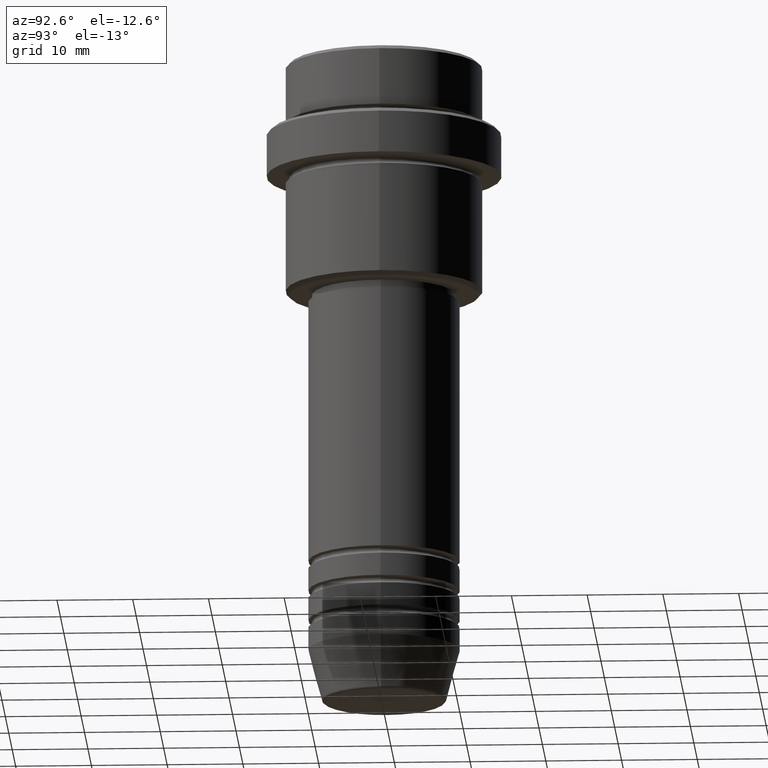
[diagram: clean part render]
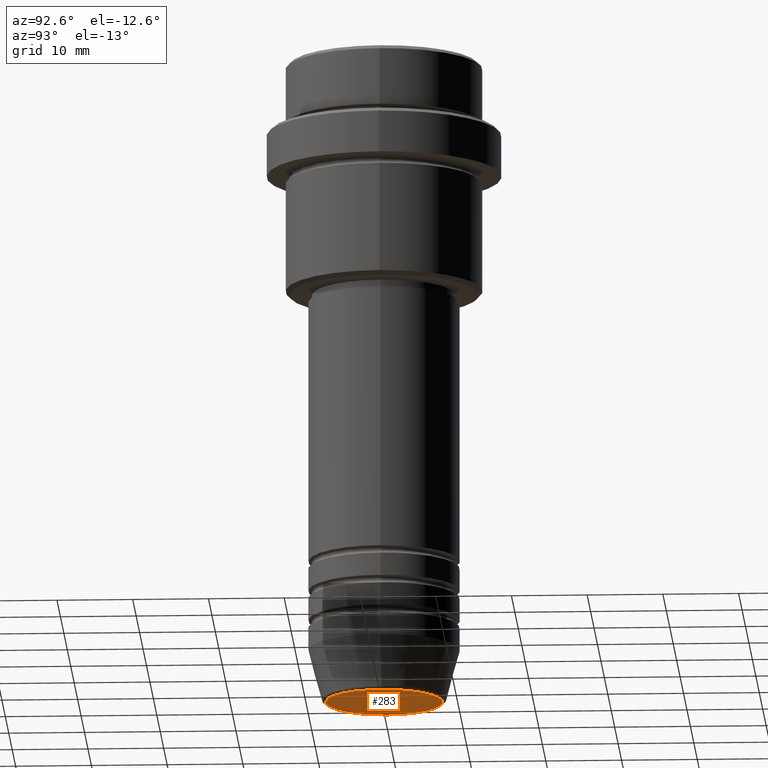
[diagram: same view with one face highlighted and labeled with its STEP entity id]
A machine part, auxiliary view. The second image highlights one B-rep face of the part: STEP entity #283.
In plain terms, the highlighted planar face has unit normal (0, -0, 1).
Its self-contained STEP definition (entity closure, byte-faithful):
#70 = DIRECTION ( 'NONE',  ( 1.000000000000000000, 0.000000000000000000, 0.000000000000000000 ) ) ;
#80 = CIRCLE ( 'NONE', #409, 7.740692158992658278 ) ;
#212 = DIRECTION ( 'NONE',  ( 1.000000000000000000, 0.000000000000000000, 0.000000000000000000 ) ) ;
#227 = EDGE_CURVE ( 'NONE', #1399, #1021, #80, .T. ) ;
#249 = DIRECTION ( 'NONE',  ( 0.000000000000000000, 0.000000000000000000, -1.000000000000000000 ) ) ;
#269 = ORIENTED_EDGE ( 'NONE', *, *, #227, .T. ) ;
#276 = CARTESIAN_POINT ( 'NONE',  ( 0.000000000000000000, 0.000000000000000000, -86.00000000000000000 ) ) ;
#283 = ADVANCED_FACE ( 'NONE', ( #771 ), #301, .F. ) ;
#301 = PLANE ( 'NONE',  #707 ) ;
#352 = CARTESIAN_POINT ( 'NONE',  ( -7.740692158992658278, 9.775343368540041107E-16, -86.00000000000000000 ) ) ;
#378 = DIRECTION ( 'NONE',  ( 1.000000000000000000, 0.000000000000000000, 0.000000000000000000 ) ) ;
#402 = CARTESIAN_POINT ( 'NONE',  ( 0.000000000000000000, 0.000000000000000000, -86.00000000000000000 ) ) ;
#409 = AXIS2_PLACEMENT_3D ( 'NONE', #1076, #1401, #212 ) ;
#488 = EDGE_CURVE ( 'NONE', #1021, #1399, #1101, .T. ) ;
#502 = CARTESIAN_POINT ( 'NONE',  ( 7.740692158992658278, 0.000000000000000000, -86.00000000000000000 ) ) ;
#707 = AXIS2_PLACEMENT_3D ( 'NONE', #402, #739, #70 ) ;
#739 = DIRECTION ( 'NONE',  ( 0.000000000000000000, -0.000000000000000000, 1.000000000000000000 ) ) ;
#765 = AXIS2_PLACEMENT_3D ( 'NONE', #276, #249, #378 ) ;
#771 = FACE_OUTER_BOUND ( 'NONE', #1277, .T. ) ;
#1021 = VERTEX_POINT ( 'NONE', #502 ) ;
#1076 = CARTESIAN_POINT ( 'NONE',  ( 0.000000000000000000, 0.000000000000000000, -86.00000000000000000 ) ) ;
#1101 = CIRCLE ( 'NONE', #765, 7.740692158992658278 ) ;
#1113 = ORIENTED_EDGE ( 'NONE', *, *, #488, .T. ) ;
#1277 = EDGE_LOOP ( 'NONE', ( #1113, #269 ) ) ;
#1399 = VERTEX_POINT ( 'NONE', #352 ) ;
#1401 = DIRECTION ( 'NONE',  ( 0.000000000000000000, 0.000000000000000000, -1.000000000000000000 ) ) ;